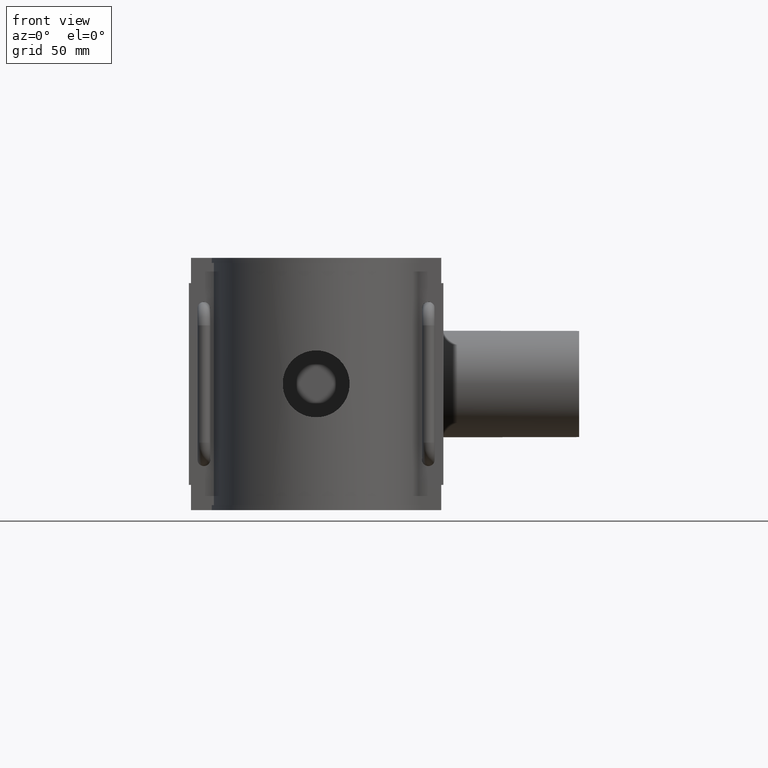
[diagram: clean part render]
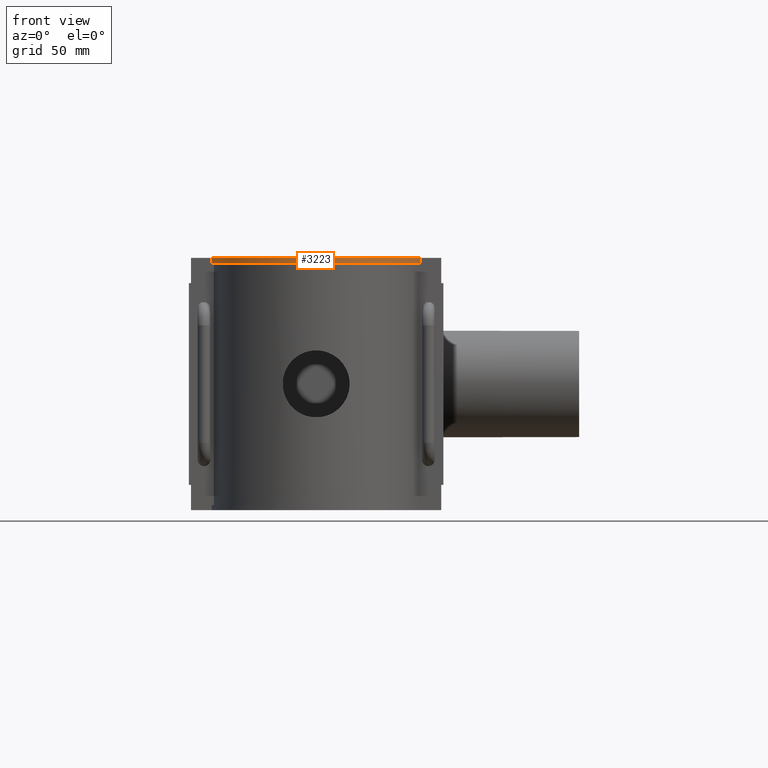
[diagram: same view with one face highlighted and labeled with its STEP entity id]
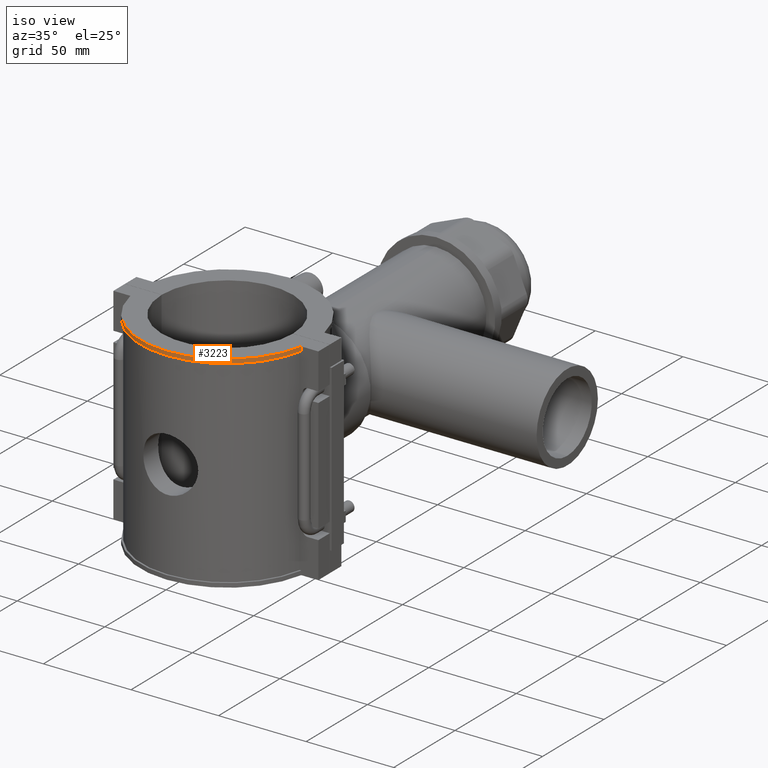
[diagram: same view with one face highlighted and labeled with its STEP entity id]
A machine part, front view. The second image highlights one B-rep face of the part: STEP entity #3223.
A second angle (iso view) of the same face is appended — the face is thin or edge-on in the first view.
In plain terms, the highlighted cylindrical surface (partial cylindrical patch) has radius 49.725 mm, axis along (0, 0, -1).
Its self-contained STEP definition (entity closure, byte-faithful):
#118=LINE('',#5488,#405);
#130=LINE('',#5552,#417);
#405=VECTOR('',#3985,2.36);
#417=VECTOR('',#4017,2.36);
#748=CYLINDRICAL_SURFACE('',#3479,49.725);
#843=FACE_OUTER_BOUND('',#1053,.T.);
#1053=EDGE_LOOP('',(#2394,#2395,#2396,#2397));
#1273=CIRCLE('',#3480,49.725);
#1274=CIRCLE('',#3481,49.725);
#1434=VERTEX_POINT('',#5485);
#1435=VERTEX_POINT('',#5487);
#1452=VERTEX_POINT('',#5548);
#1453=VERTEX_POINT('',#5550);
#1789=EDGE_CURVE('',#1434,#1435,#118,.T.);
#1808=EDGE_CURVE('',#1435,#1452,#1273,.T.);
#1809=EDGE_CURVE('',#1453,#1434,#1274,.T.);
#1810=EDGE_CURVE('',#1452,#1453,#130,.T.);
#2394=ORIENTED_EDGE('',*,*,#1808,.F.);
#2395=ORIENTED_EDGE('',*,*,#1789,.F.);
#2396=ORIENTED_EDGE('',*,*,#1809,.F.);
#2397=ORIENTED_EDGE('',*,*,#1810,.F.);
#3223=ADVANCED_FACE('',(#843),#748,.T.);
#3479=AXIS2_PLACEMENT_3D('',#5547,#4011,#4012);
#3480=AXIS2_PLACEMENT_3D('',#5549,#4013,#4014);
#3481=AXIS2_PLACEMENT_3D('',#5551,#4015,#4016);
#3985=DIRECTION('',(0.,0.,1.));
#4011=DIRECTION('center_axis',(0.,0.,-1.));
#4012=DIRECTION('ref_axis',(-0.982066096177803,-0.188536953242836,0.));
#4013=DIRECTION('center_axis',(0.,0.,1.));
#4014=DIRECTION('ref_axis',(-0.982066096177803,-0.188536953242836,0.));
#4015=DIRECTION('center_axis',(0.,0.,-1.));
#4016=DIRECTION('ref_axis',(-0.982066096177803,-0.188536953242836,0.));
#4017=DIRECTION('',(0.,0.,-1.));
#5485=CARTESIAN_POINT('',(-48.8332366324412,-9.375,56.64));
#5487=CARTESIAN_POINT('',(-48.8332366324412,-9.375,59.));
#5488=CARTESIAN_POINT('',(-48.8332366324412,-9.375,59.));
#5547=CARTESIAN_POINT('Origin',(0.,0.,59.));
#5548=CARTESIAN_POINT('',(48.8332366324412,-9.375,59.));
#5549=CARTESIAN_POINT('Origin',(0.,0.,59.));
#5550=CARTESIAN_POINT('',(48.8332366324412,-9.375,56.64));
#5551=CARTESIAN_POINT('Origin',(0.,0.,56.64));
#5552=CARTESIAN_POINT('',(48.8332366324412,-9.375,59.));